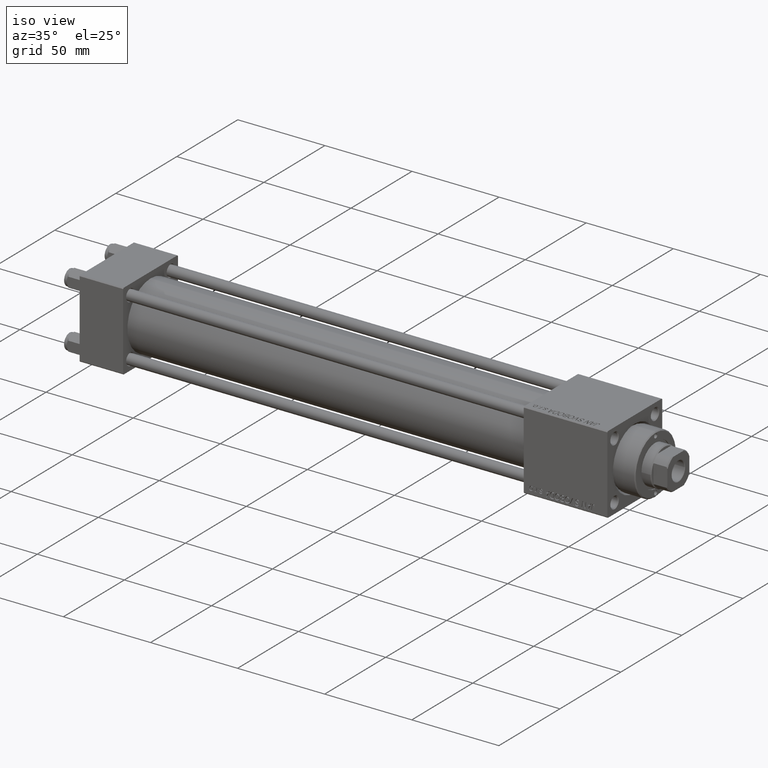
[diagram: clean part render]
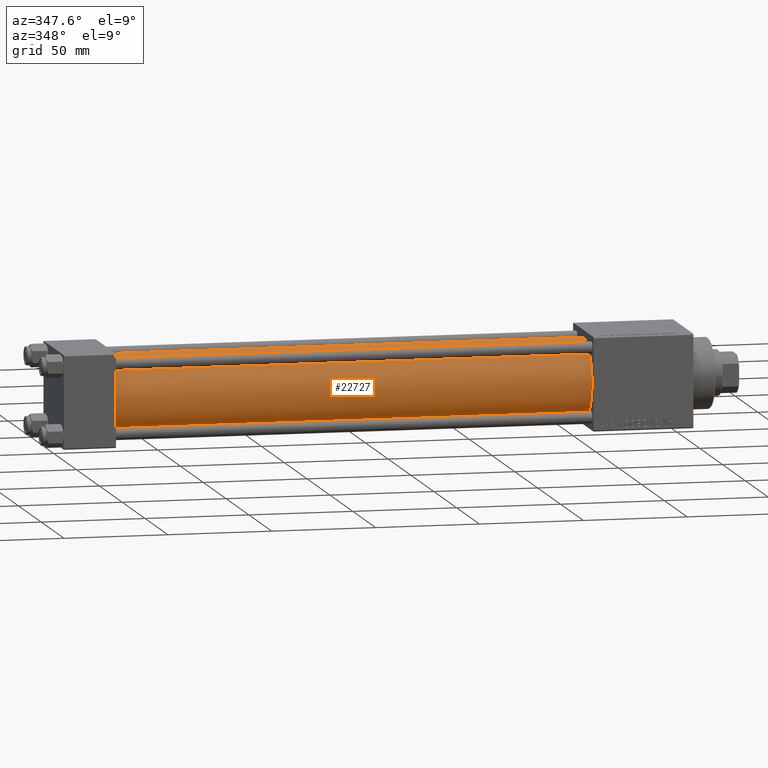
[diagram: tour spotlight — one face highlighted and labeled with its STEP entity id]
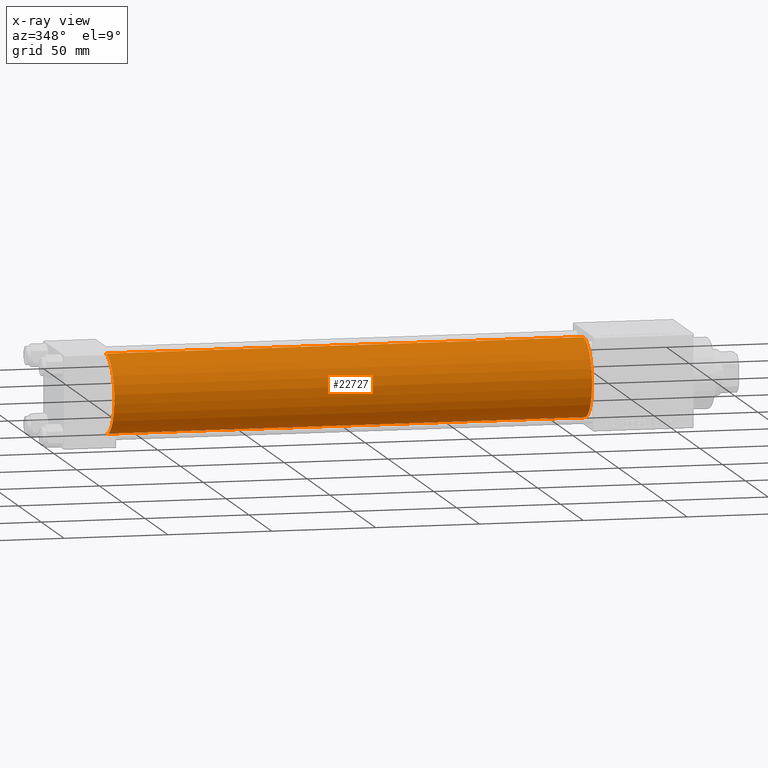
[diagram: x-ray of the same camera — body ghosted, this tour face saturated]
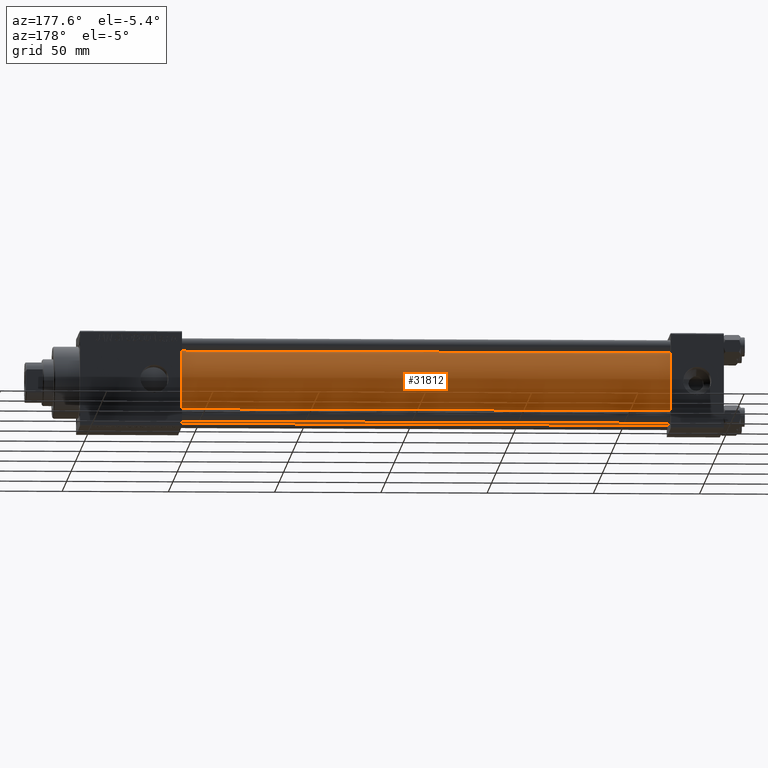
[diagram: tour spotlight — one face highlighted and labeled with its STEP entity id]
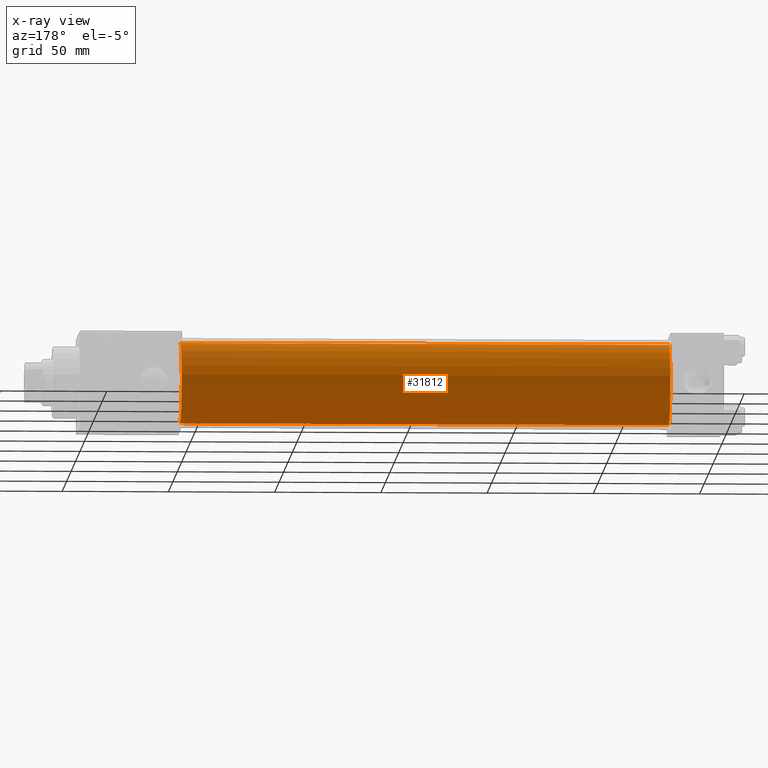
[diagram: x-ray of the same camera — body ghosted, this tour face saturated]
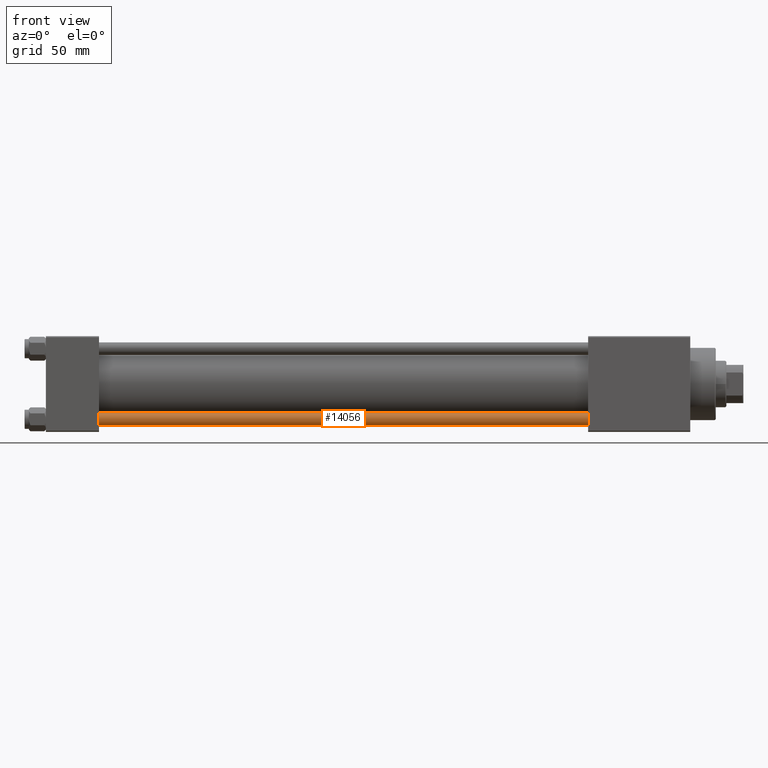
[diagram: tour spotlight — one face highlighted and labeled with its STEP entity id]
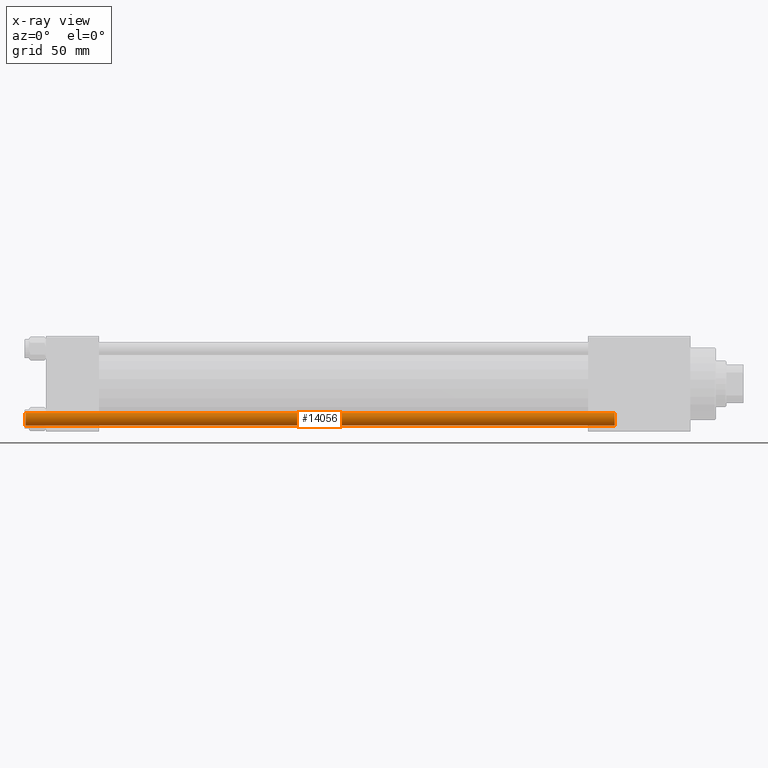
[diagram: x-ray of the same camera — body ghosted, this tour face saturated]
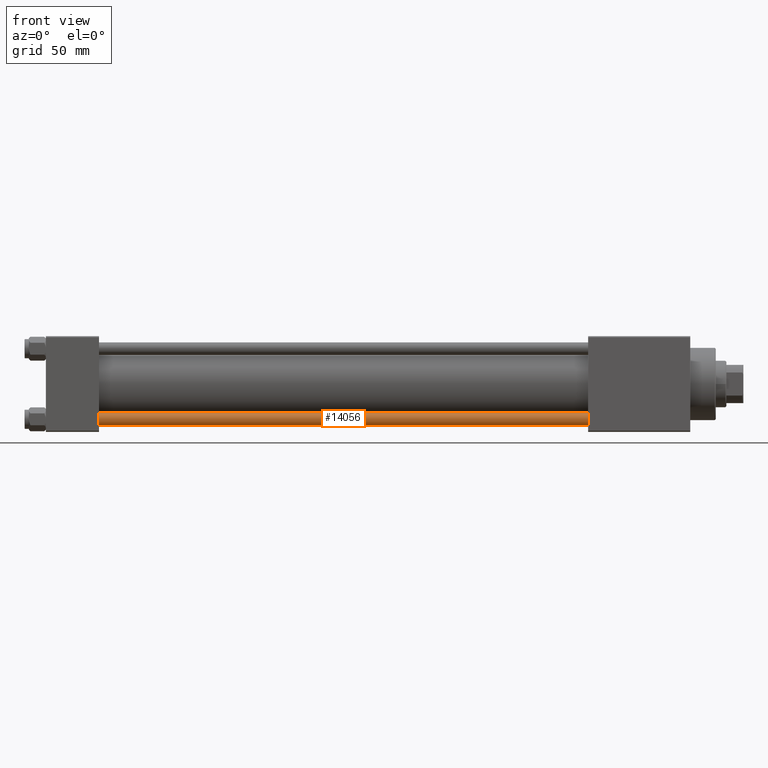
[diagram: tour spotlight — one face highlighted and labeled with its STEP entity id]
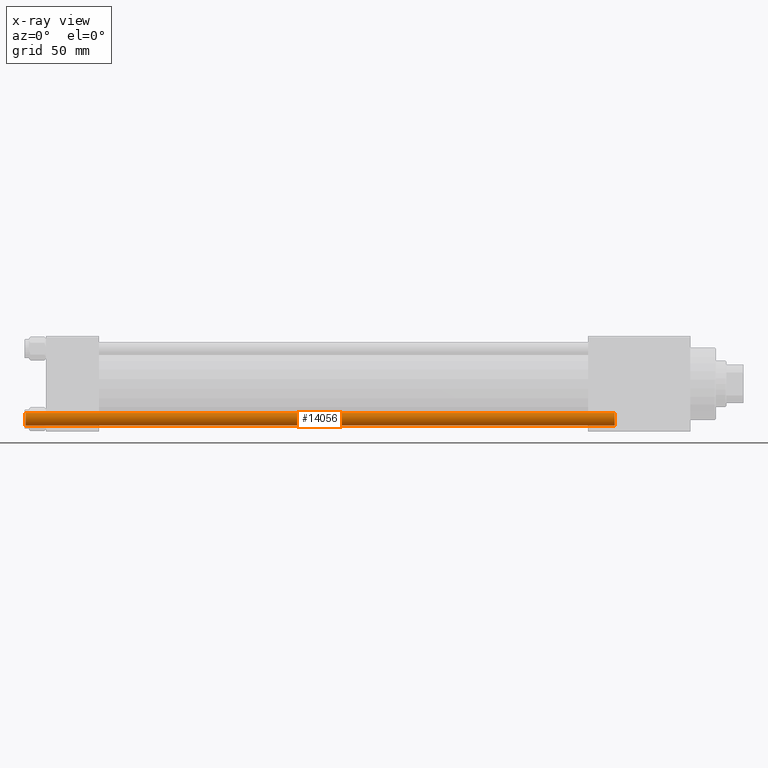
[diagram: x-ray of the same camera — body ghosted, this tour face saturated]
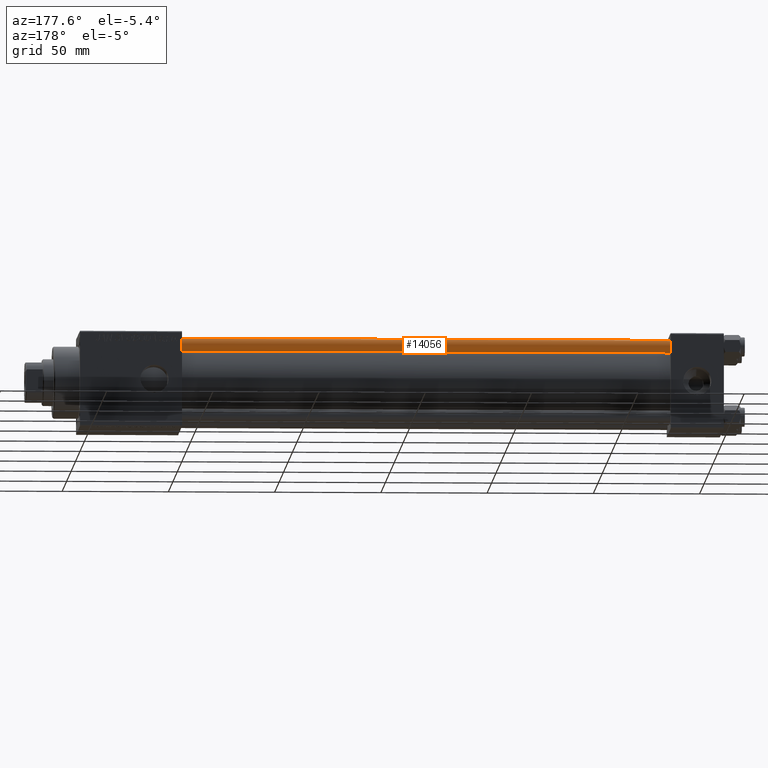
[diagram: tour spotlight — one face highlighted and labeled with its STEP entity id]
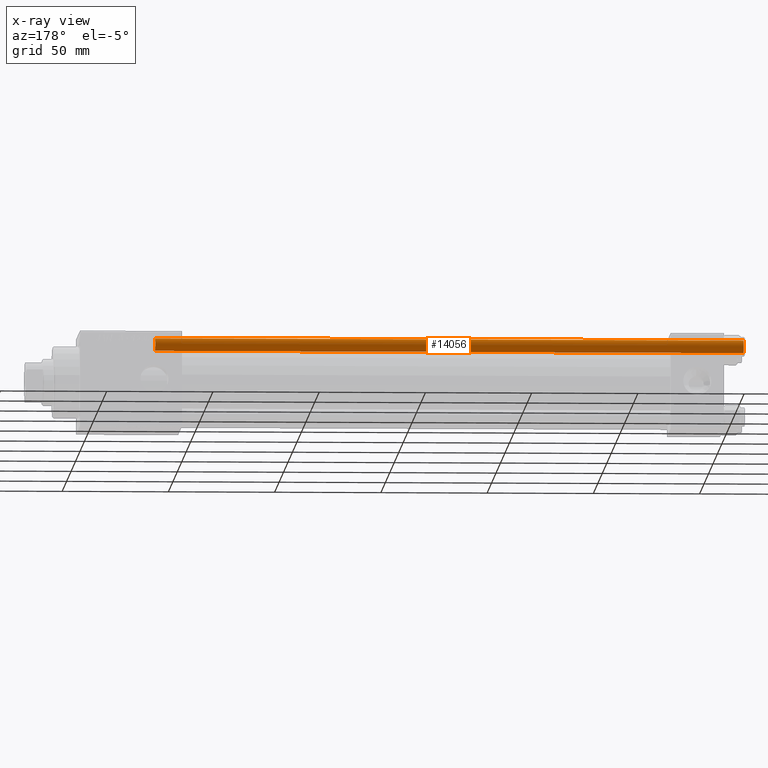
[diagram: x-ray of the same camera — body ghosted, this tour face saturated]
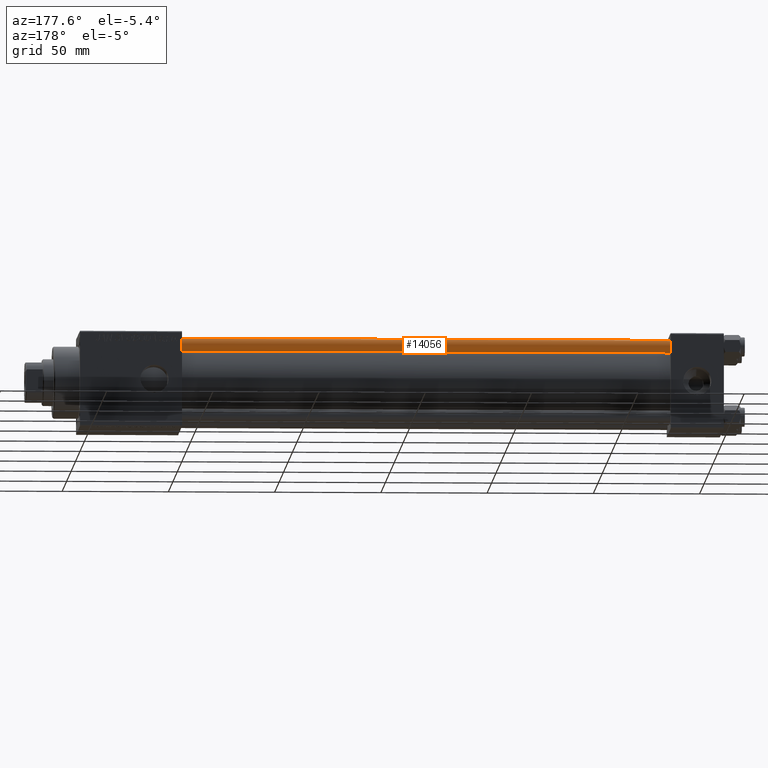
[diagram: tour spotlight — one face highlighted and labeled with its STEP entity id]
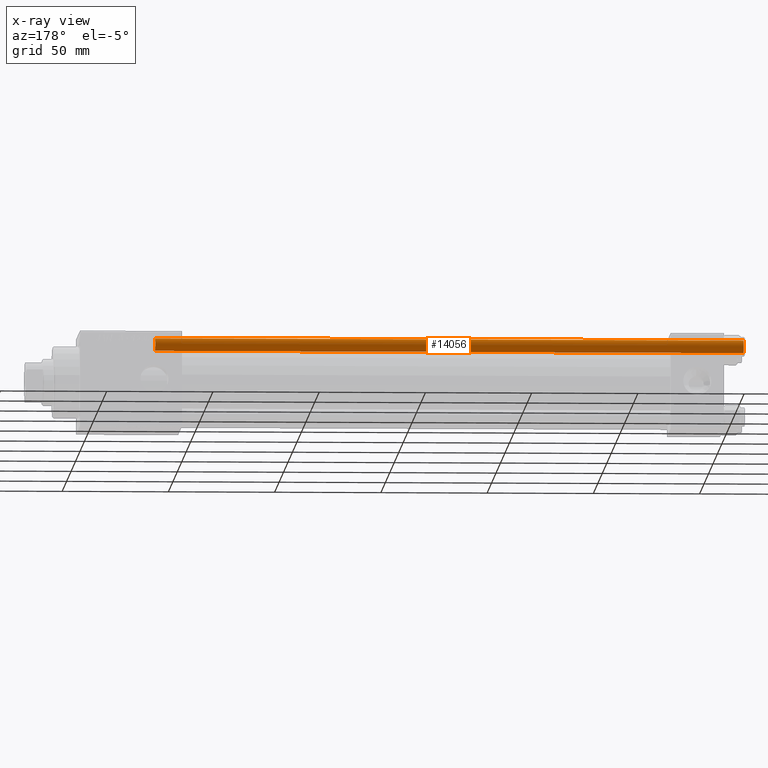
[diagram: x-ray of the same camera — body ghosted, this tour face saturated]
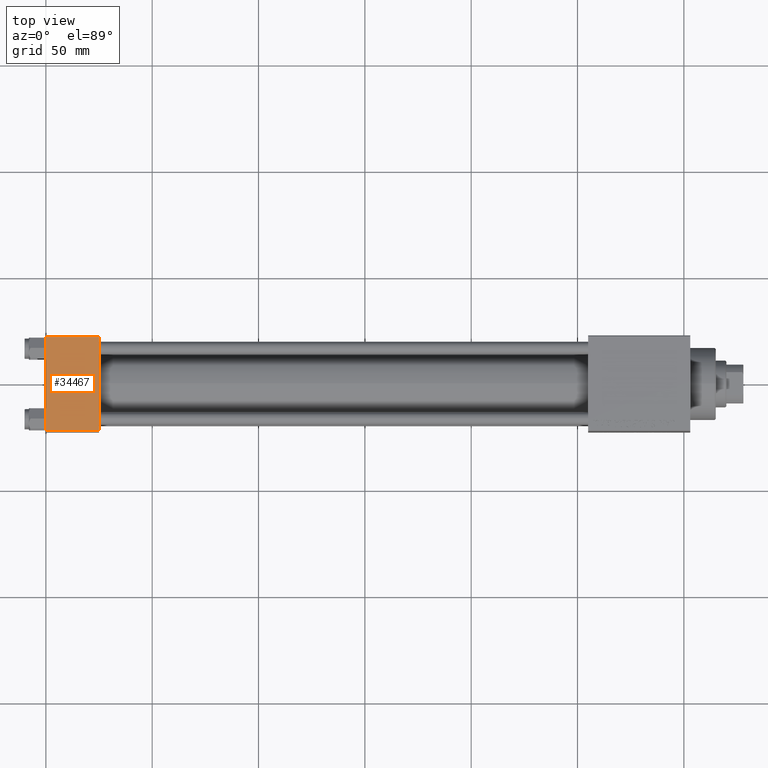
[diagram: tour spotlight — one face highlighted and labeled with its STEP entity id]
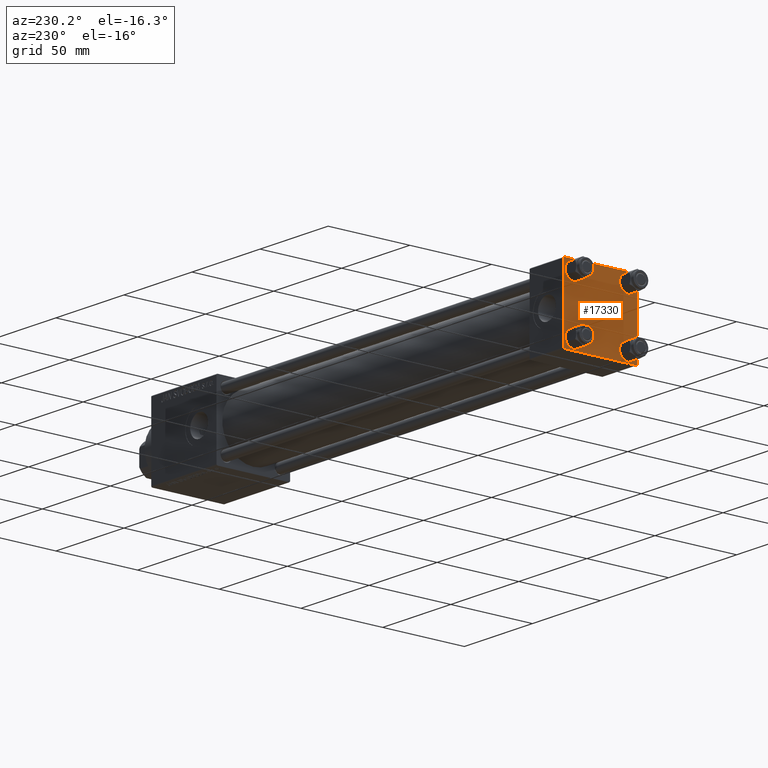
[diagram: tour spotlight — one face highlighted and labeled with its STEP entity id]
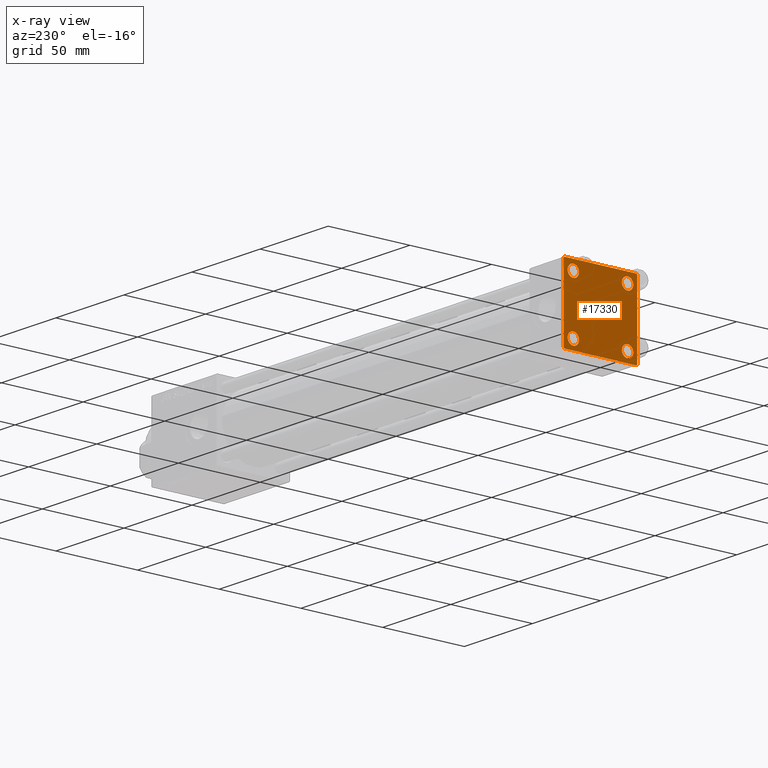
[diagram: x-ray of the same camera — body ghosted, this tour face saturated]
A machine part: a face-by-face anatomy tour. The part has 1154 B-rep faces; the first image is the clean iso view, then the 8 largest visible faces are spotlighted one at a time (largest first), each with its STEP entity span.

Face 1 — auxiliary view, entity #22727. An x-ray twin of the same camera follows (body ghosted, this face saturated) — the face is partly hidden behind the body. In plain terms, the highlighted cylindrical surface (partial cylindrical patch) has radius 19 mm, axis along (-1, -0, -0).
Definition (entity closure, byte-faithful):
#349 = CARTESIAN_POINT ( 'NONE',  ( 24.99999999999999289, -2.752562955852396712E-16, -19.00000000000000000 ) ) ;
#665 = CARTESIAN_POINT ( 'NONE',  ( 255.0000000000000000, -2.752562955852396712E-16, -19.00000000000000000 ) ) ;
#1818 = VERTEX_POINT ( 'NONE', #38699 ) ;
#5776 = CARTESIAN_POINT ( 'NONE',  ( 24.99999999999999289, -2.602085213965210642E-15, 19.00000000000000000 ) ) ;
#5983 = EDGE_CURVE ( 'NONE', #38402, #21989, #35597, .T. ) ;
#7943 = DIRECTION ( 'NONE',  ( 0.000000000000000000, 0.000000000000000000, -1.000000000000000000 ) ) ;
#9694 = DIRECTION ( 'NONE',  ( 1.000000000000000000, -0.000000000000000000, 0.000000000000000000 ) ) ;
#12506 = LINE ( 'NONE', #35947, #48695 ) ;
#13637 = AXIS2_PLACEMENT_3D ( 'NONE', #41027, #9694, #48650 ) ;
#15604 = EDGE_LOOP ( 'NONE', ( #18954, #30454, #49440, #44345 ) ) ;
#18343 = EDGE_CURVE ( 'NONE', #1818, #38402, #24346, .T. ) ;
#18954 = ORIENTED_EDGE ( 'NONE', *, *, #22371, .F. ) ;
#20275 = CARTESIAN_POINT ( 'NONE',  ( 255.0000000000000000, -2.602085213965210642E-15, 19.00000000000000000 ) ) ;
#21604 = DIRECTION ( 'NONE',  ( 0.000000000000000000, 0.000000000000000000, 1.000000000000000000 ) ) ;
#21854 = DIRECTION ( 'NONE',  ( -1.000000000000000000, -0.000000000000000000, -0.000000000000000000 ) ) ;
#21989 = VERTEX_POINT ( 'NONE', #349 ) ;
#22371 = EDGE_CURVE ( 'NONE', #39968, #21989, #12506, .T. ) ;
#22727 = ADVANCED_FACE ( 'NONE', ( #32830 ), #45268, .T. ) ;
#24346 = LINE ( 'NONE', #20275, #27774 ) ;
#27774 = VECTOR ( 'NONE', #35068, 1000.000000000000000 ) ;
#30454 = ORIENTED_EDGE ( 'NONE', *, *, #36781, .F. ) ;
#31650 = DIRECTION ( 'NONE',  ( 1.000000000000000000, 0.000000000000000000, 0.000000000000000000 ) ) ;
#32634 = DIRECTION ( 'NONE',  ( -1.000000000000000000, -0.000000000000000000, -0.000000000000000000 ) ) ;
#32830 = FACE_OUTER_BOUND ( 'NONE', #15604, .T. ) ;
#35068 = DIRECTION ( 'NONE',  ( -1.000000000000000000, -0.000000000000000000, -0.000000000000000000 ) ) ;
#35597 = CIRCLE ( 'NONE', #13637, 19.00000000000000000 ) ;
#35947 = CARTESIAN_POINT ( 'NONE',  ( 255.0000000000000000, -2.752562955852396712E-16, -19.00000000000000000 ) ) ;
#36024 = CIRCLE ( 'NONE', #46587, 19.00000000000000000 ) ;
#36781 = EDGE_CURVE ( 'NONE', #1818, #39968, #36024, .T. ) ;
#38402 = VERTEX_POINT ( 'NONE', #5776 ) ;
#38699 = CARTESIAN_POINT ( 'NONE',  ( 255.0000000000000000, -2.602085213965210642E-15, 19.00000000000000000 ) ) ;
#39760 = AXIS2_PLACEMENT_3D ( 'NONE', #48328, #21854, #21604 ) ;
#39968 = VERTEX_POINT ( 'NONE', #665 ) ;
#41027 = CARTESIAN_POINT ( 'NONE',  ( 24.99999999999999289, -2.602085213965210642E-15, 0.000000000000000000 ) ) ;
#41406 = CARTESIAN_POINT ( 'NONE',  ( 255.0000000000000000, -2.602085213965210642E-15, 0.000000000000000000 ) ) ;
#44345 = ORIENTED_EDGE ( 'NONE', *, *, #5983, .T. ) ;
#45268 = CYLINDRICAL_SURFACE ( 'NONE', #39760, 19.00000000000000000 ) ;
#46587 = AXIS2_PLACEMENT_3D ( 'NONE', #41406, #31650, #7943 ) ;
#48328 = CARTESIAN_POINT ( 'NONE',  ( 255.0000000000000000, -2.602085213965210642E-15, 0.000000000000000000 ) ) ;
#48650 = DIRECTION ( 'NONE',  ( 0.000000000000000000, 0.000000000000000000, 1.000000000000000000 ) ) ;
#48695 = VECTOR ( 'NONE', #32634, 1000.000000000000000 ) ;
#49440 = ORIENTED_EDGE ( 'NONE', *, *, #18343, .T. ) ;

Face 2 — auxiliary view, entity #31812. An x-ray twin of the same camera follows (body ghosted, this face saturated) — the face is partly hidden behind the body. In plain terms, the highlighted cylindrical surface (partial cylindrical patch) has radius 19 mm, axis along (-1, -0, -0).
Definition (entity closure, byte-faithful):
#349 = CARTESIAN_POINT ( 'NONE',  ( 24.99999999999999289, -2.752562955852396712E-16, -19.00000000000000000 ) ) ;
#665 = CARTESIAN_POINT ( 'NONE',  ( 255.0000000000000000, -2.752562955852396712E-16, -19.00000000000000000 ) ) ;
#1818 = VERTEX_POINT ( 'NONE', #38699 ) ;
#1847 = AXIS2_PLACEMENT_3D ( 'NONE', #44488, #36353, #32537 ) ;
#5754 = DIRECTION ( 'NONE',  ( -1.000000000000000000, -0.000000000000000000, -0.000000000000000000 ) ) ;
#5776 = CARTESIAN_POINT ( 'NONE',  ( 24.99999999999999289, -2.602085213965210642E-15, 19.00000000000000000 ) ) ;
#7682 = ORIENTED_EDGE ( 'NONE', *, *, #33455, .F. ) ;
#10512 = DIRECTION ( 'NONE',  ( 1.000000000000000000, -0.000000000000000000, 0.000000000000000000 ) ) ;
#12304 = CIRCLE ( 'NONE', #1847, 19.00000000000000000 ) ;
#12506 = LINE ( 'NONE', #35947, #48695 ) ;
#15353 = ORIENTED_EDGE ( 'NONE', *, *, #32255, .T. ) ;
#17226 = FACE_OUTER_BOUND ( 'NONE', #42284, .T. ) ;
#18108 = AXIS2_PLACEMENT_3D ( 'NONE', #26077, #10512, #45904 ) ;
#18343 = EDGE_CURVE ( 'NONE', #1818, #38402, #24346, .T. ) ;
#20275 = CARTESIAN_POINT ( 'NONE',  ( 255.0000000000000000, -2.602085213965210642E-15, 19.00000000000000000 ) ) ;
#21556 = CARTESIAN_POINT ( 'NONE',  ( 255.0000000000000000, -2.602085213965210642E-15, 0.000000000000000000 ) ) ;
#21989 = VERTEX_POINT ( 'NONE', #349 ) ;
#22371 = EDGE_CURVE ( 'NONE', #39968, #21989, #12506, .T. ) ;
#22993 = ORIENTED_EDGE ( 'NONE', *, *, #22371, .T. ) ;
#24346 = LINE ( 'NONE', #20275, #27774 ) ;
#26077 = CARTESIAN_POINT ( 'NONE',  ( 24.99999999999999289, -2.602085213965210642E-15, 0.000000000000000000 ) ) ;
#27774 = VECTOR ( 'NONE', #35068, 1000.000000000000000 ) ;
#31812 = ADVANCED_FACE ( 'NONE', ( #17226 ), #48277, .T. ) ;
#32255 = EDGE_CURVE ( 'NONE', #21989, #38402, #40058, .T. ) ;
#32537 = DIRECTION ( 'NONE',  ( 0.000000000000000000, 0.000000000000000000, -1.000000000000000000 ) ) ;
#32634 = DIRECTION ( 'NONE',  ( -1.000000000000000000, -0.000000000000000000, -0.000000000000000000 ) ) ;
#33455 = EDGE_CURVE ( 'NONE', #39968, #1818, #12304, .T. ) ;
#35068 = DIRECTION ( 'NONE',  ( -1.000000000000000000, -0.000000000000000000, -0.000000000000000000 ) ) ;
#35947 = CARTESIAN_POINT ( 'NONE',  ( 255.0000000000000000, -2.752562955852396712E-16, -19.00000000000000000 ) ) ;
#36353 = DIRECTION ( 'NONE',  ( 1.000000000000000000, 0.000000000000000000, 0.000000000000000000 ) ) ;
#38402 = VERTEX_POINT ( 'NONE', #5776 ) ;
#38699 = CARTESIAN_POINT ( 'NONE',  ( 255.0000000000000000, -2.602085213965210642E-15, 19.00000000000000000 ) ) ;
#39968 = VERTEX_POINT ( 'NONE', #665 ) ;
#40058 = CIRCLE ( 'NONE', #18108, 19.00000000000000000 ) ;
#42284 = EDGE_LOOP ( 'NONE', ( #7682, #22993, #15353, #47053 ) ) ;
#44124 = AXIS2_PLACEMENT_3D ( 'NONE', #21556, #5754, #48530 ) ;
#44488 = CARTESIAN_POINT ( 'NONE',  ( 255.0000000000000000, -2.602085213965210642E-15, 0.000000000000000000 ) ) ;
#45904 = DIRECTION ( 'NONE',  ( 0.000000000000000000, 0.000000000000000000, 1.000000000000000000 ) ) ;
#47053 = ORIENTED_EDGE ( 'NONE', *, *, #18343, .F. ) ;
#48277 = CYLINDRICAL_SURFACE ( 'NONE', #44124, 19.00000000000000000 ) ;
#48530 = DIRECTION ( 'NONE',  ( 0.000000000000000000, 0.000000000000000000, 1.000000000000000000 ) ) ;
#48695 = VECTOR ( 'NONE', #32634, 1000.000000000000000 ) ;

Face 3 — front view, entity #14056. An x-ray twin of the same camera follows (body ghosted, this face saturated) — the face is partly hidden behind the body. In plain terms, the highlighted cylindrical surface (edge-blend (fillet) strip) has radius 3 mm, axis along (1, 0, -0).
Definition (entity closure, byte-faithful):
#1478 = VERTEX_POINT ( 'NONE', #22034 ) ;
#3337 = AXIS2_PLACEMENT_3D ( 'NONE', #11235, #26798, #22977 ) ;
#3349 = FACE_OUTER_BOUND ( 'NONE', #3798, .T. ) ;
#3521 = CARTESIAN_POINT ( 'NONE',  ( 3.000000000000000444, 3.673940397442060361E-16, 277.5000000000000568 ) ) ;
#3798 = EDGE_LOOP ( 'NONE', ( #47733, #9255, #36329, #42404 ) ) ;
#9255 = ORIENTED_EDGE ( 'NONE', *, *, #37506, .T. ) ;
#10516 = DIRECTION ( 'NONE',  ( 1.000000000000000000, 0.000000000000000000, 0.000000000000000000 ) ) ;
#10584 = LINE ( 'NONE', #34781, #10813 ) ;
#10813 = VECTOR ( 'NONE', #46476, 1000.000000000000000 ) ;
#11235 = CARTESIAN_POINT ( 'NONE',  ( 0.000000000000000000, 0.000000000000000000, 278.0000000000000000 ) ) ;
#12219 = CARTESIAN_POINT ( 'NONE',  ( 0.000000000000000000, 0.000000000000000000, 277.5000000000000568 ) ) ;
#12700 = AXIS2_PLACEMENT_3D ( 'NONE', #12219, #43797, #35919 ) ;
#13636 = CARTESIAN_POINT ( 'NONE',  ( -3.000000000000000444, 0.000000000000000000, 277.5000000000000568 ) ) ;
#14056 = ADVANCED_FACE ( 'NONE', ( #3349 ), #46121, .T. ) ;
#16726 = LINE ( 'NONE', #28448, #35915 ) ;
#17323 = VERTEX_POINT ( 'NONE', #13636 ) ;
#22034 = CARTESIAN_POINT ( 'NONE',  ( 3.000000000000000444, 3.673940397442060361E-16, 0.5000000000000559552 ) ) ;
#22977 = DIRECTION ( 'NONE',  ( -1.000000000000000000, 0.000000000000000000, 0.000000000000000000 ) ) ;
#23293 = CIRCLE ( 'NONE', #12700, 3.000000000000000444 ) ;
#26798 = DIRECTION ( 'NONE',  ( -0.000000000000000000, -0.000000000000000000, -1.000000000000000000 ) ) ;
#28448 = CARTESIAN_POINT ( 'NONE',  ( -3.000000000000000444, 0.000000000000000000, 278.0000000000000000 ) ) ;
#32924 = EDGE_CURVE ( 'NONE', #17323, #43598, #16726, .T. ) ;
#33044 = CIRCLE ( 'NONE', #43602, 3.000000000000000444 ) ;
#34781 = CARTESIAN_POINT ( 'NONE',  ( 3.000000000000000444, 3.673940397442060361E-16, 278.0000000000000000 ) ) ;
#34891 = CARTESIAN_POINT ( 'NONE',  ( -3.000000000000000444, 0.000000000000000000, 0.5000000000000559552 ) ) ;
#35915 = VECTOR ( 'NONE', #48040, 1000.000000000000000 ) ;
#35919 = DIRECTION ( 'NONE',  ( 1.000000000000000000, 0.000000000000000000, 0.000000000000000000 ) ) ;
#36329 = ORIENTED_EDGE ( 'NONE', *, *, #49544, .T. ) ;
#37041 = CARTESIAN_POINT ( 'NONE',  ( 0.000000000000000000, 0.000000000000000000, 0.5000000000000559552 ) ) ;
#37506 = EDGE_CURVE ( 'NONE', #44739, #1478, #10584, .T. ) ;
#42404 = ORIENTED_EDGE ( 'NONE', *, *, #32924, .F. ) ;
#43598 = VERTEX_POINT ( 'NONE', #34891 ) ;
#43602 = AXIS2_PLACEMENT_3D ( 'NONE', #37041, #49470, #10516 ) ;
#43797 = DIRECTION ( 'NONE',  ( 0.000000000000000000, 0.000000000000000000, -1.000000000000000000 ) ) ;
#44739 = VERTEX_POINT ( 'NONE', #3521 ) ;
#45387 = EDGE_CURVE ( 'NONE', #17323, #44739, #23293, .T. ) ;
#46121 = CYLINDRICAL_SURFACE ( 'NONE', #3337, 3.000000000000000444 ) ;
#46476 = DIRECTION ( 'NONE',  ( -0.000000000000000000, -0.000000000000000000, -1.000000000000000000 ) ) ;
#47733 = ORIENTED_EDGE ( 'NONE', *, *, #45387, .T. ) ;
#48040 = DIRECTION ( 'NONE',  ( -0.000000000000000000, -0.000000000000000000, -1.000000000000000000 ) ) ;
#49470 = DIRECTION ( 'NONE',  ( -0.000000000000000000, -0.000000000000000000, 1.000000000000000000 ) ) ;
#49544 = EDGE_CURVE ( 'NONE', #1478, #43598, #33044, .T. ) ;

Face 4 — front view, entity #14056. An x-ray twin of the same camera follows (body ghosted, this face saturated) — the face is partly hidden behind the body. In plain terms, the highlighted cylindrical surface (edge-blend (fillet) strip) has radius 3 mm, axis along (-1, -0, -0).
Definition (entity closure, byte-faithful):
#1478 = VERTEX_POINT ( 'NONE', #22034 ) ;
#3337 = AXIS2_PLACEMENT_3D ( 'NONE', #11235, #26798, #22977 ) ;
#3349 = FACE_OUTER_BOUND ( 'NONE', #3798, .T. ) ;
#3521 = CARTESIAN_POINT ( 'NONE',  ( 3.000000000000000444, 3.673940397442060361E-16, 277.5000000000000568 ) ) ;
#3798 = EDGE_LOOP ( 'NONE', ( #47733, #9255, #36329, #42404 ) ) ;
#9255 = ORIENTED_EDGE ( 'NONE', *, *, #37506, .T. ) ;
#10516 = DIRECTION ( 'NONE',  ( 1.000000000000000000, 0.000000000000000000, 0.000000000000000000 ) ) ;
#10584 = LINE ( 'NONE', #34781, #10813 ) ;
#10813 = VECTOR ( 'NONE', #46476, 1000.000000000000000 ) ;
#11235 = CARTESIAN_POINT ( 'NONE',  ( 0.000000000000000000, 0.000000000000000000, 278.0000000000000000 ) ) ;
#12219 = CARTESIAN_POINT ( 'NONE',  ( 0.000000000000000000, 0.000000000000000000, 277.5000000000000568 ) ) ;
#12700 = AXIS2_PLACEMENT_3D ( 'NONE', #12219, #43797, #35919 ) ;
#13636 = CARTESIAN_POINT ( 'NONE',  ( -3.000000000000000444, 0.000000000000000000, 277.5000000000000568 ) ) ;
#14056 = ADVANCED_FACE ( 'NONE', ( #3349 ), #46121, .T. ) ;
#16726 = LINE ( 'NONE', #28448, #35915 ) ;
#17323 = VERTEX_POINT ( 'NONE', #13636 ) ;
#22034 = CARTESIAN_POINT ( 'NONE',  ( 3.000000000000000444, 3.673940397442060361E-16, 0.5000000000000559552 ) ) ;
#22977 = DIRECTION ( 'NONE',  ( -1.000000000000000000, 0.000000000000000000, 0.000000000000000000 ) ) ;
#23293 = CIRCLE ( 'NONE', #12700, 3.000000000000000444 ) ;
#26798 = DIRECTION ( 'NONE',  ( -0.000000000000000000, -0.000000000000000000, -1.000000000000000000 ) ) ;
#28448 = CARTESIAN_POINT ( 'NONE',  ( -3.000000000000000444, 0.000000000000000000, 278.0000000000000000 ) ) ;
#32924 = EDGE_CURVE ( 'NONE', #17323, #43598, #16726, .T. ) ;
#33044 = CIRCLE ( 'NONE', #43602, 3.000000000000000444 ) ;
#34781 = CARTESIAN_POINT ( 'NONE',  ( 3.000000000000000444, 3.673940397442060361E-16, 278.0000000000000000 ) ) ;
#34891 = CARTESIAN_POINT ( 'NONE',  ( -3.000000000000000444, 0.000000000000000000, 0.5000000000000559552 ) ) ;
#35915 = VECTOR ( 'NONE', #48040, 1000.000000000000000 ) ;
#35919 = DIRECTION ( 'NONE',  ( 1.000000000000000000, 0.000000000000000000, 0.000000000000000000 ) ) ;
#36329 = ORIENTED_EDGE ( 'NONE', *, *, #49544, .T. ) ;
#37041 = CARTESIAN_POINT ( 'NONE',  ( 0.000000000000000000, 0.000000000000000000, 0.5000000000000559552 ) ) ;
#37506 = EDGE_CURVE ( 'NONE', #44739, #1478, #10584, .T. ) ;
#42404 = ORIENTED_EDGE ( 'NONE', *, *, #32924, .F. ) ;
#43598 = VERTEX_POINT ( 'NONE', #34891 ) ;
#43602 = AXIS2_PLACEMENT_3D ( 'NONE', #37041, #49470, #10516 ) ;
#43797 = DIRECTION ( 'NONE',  ( 0.000000000000000000, 0.000000000000000000, -1.000000000000000000 ) ) ;
#44739 = VERTEX_POINT ( 'NONE', #3521 ) ;
#45387 = EDGE_CURVE ( 'NONE', #17323, #44739, #23293, .T. ) ;
#46121 = CYLINDRICAL_SURFACE ( 'NONE', #3337, 3.000000000000000444 ) ;
#46476 = DIRECTION ( 'NONE',  ( -0.000000000000000000, -0.000000000000000000, -1.000000000000000000 ) ) ;
#47733 = ORIENTED_EDGE ( 'NONE', *, *, #45387, .T. ) ;
#48040 = DIRECTION ( 'NONE',  ( -0.000000000000000000, -0.000000000000000000, -1.000000000000000000 ) ) ;
#49470 = DIRECTION ( 'NONE',  ( -0.000000000000000000, -0.000000000000000000, 1.000000000000000000 ) ) ;
#49544 = EDGE_CURVE ( 'NONE', #1478, #43598, #33044, .T. ) ;

Face 5 — auxiliary view, entity #14056. An x-ray twin of the same camera follows (body ghosted, this face saturated) — the face is partly hidden behind the body. In plain terms, the highlighted cylindrical surface (edge-blend (fillet) strip) has radius 3 mm, axis along (1, -0, 0).
Definition (entity closure, byte-faithful):
#1478 = VERTEX_POINT ( 'NONE', #22034 ) ;
#3337 = AXIS2_PLACEMENT_3D ( 'NONE', #11235, #26798, #22977 ) ;
#3349 = FACE_OUTER_BOUND ( 'NONE', #3798, .T. ) ;
#3521 = CARTESIAN_POINT ( 'NONE',  ( 3.000000000000000444, 3.673940397442060361E-16, 277.5000000000000568 ) ) ;
#3798 = EDGE_LOOP ( 'NONE', ( #47733, #9255, #36329, #42404 ) ) ;
#9255 = ORIENTED_EDGE ( 'NONE', *, *, #37506, .T. ) ;
#10516 = DIRECTION ( 'NONE',  ( 1.000000000000000000, 0.000000000000000000, 0.000000000000000000 ) ) ;
#10584 = LINE ( 'NONE', #34781, #10813 ) ;
#10813 = VECTOR ( 'NONE', #46476, 1000.000000000000000 ) ;
#11235 = CARTESIAN_POINT ( 'NONE',  ( 0.000000000000000000, 0.000000000000000000, 278.0000000000000000 ) ) ;
#12219 = CARTESIAN_POINT ( 'NONE',  ( 0.000000000000000000, 0.000000000000000000, 277.5000000000000568 ) ) ;
#12700 = AXIS2_PLACEMENT_3D ( 'NONE', #12219, #43797, #35919 ) ;
#13636 = CARTESIAN_POINT ( 'NONE',  ( -3.000000000000000444, 0.000000000000000000, 277.5000000000000568 ) ) ;
#14056 = ADVANCED_FACE ( 'NONE', ( #3349 ), #46121, .T. ) ;
#16726 = LINE ( 'NONE', #28448, #35915 ) ;
#17323 = VERTEX_POINT ( 'NONE', #13636 ) ;
#22034 = CARTESIAN_POINT ( 'NONE',  ( 3.000000000000000444, 3.673940397442060361E-16, 0.5000000000000559552 ) ) ;
#22977 = DIRECTION ( 'NONE',  ( -1.000000000000000000, 0.000000000000000000, 0.000000000000000000 ) ) ;
#23293 = CIRCLE ( 'NONE', #12700, 3.000000000000000444 ) ;
#26798 = DIRECTION ( 'NONE',  ( -0.000000000000000000, -0.000000000000000000, -1.000000000000000000 ) ) ;
#28448 = CARTESIAN_POINT ( 'NONE',  ( -3.000000000000000444, 0.000000000000000000, 278.0000000000000000 ) ) ;
#32924 = EDGE_CURVE ( 'NONE', #17323, #43598, #16726, .T. ) ;
#33044 = CIRCLE ( 'NONE', #43602, 3.000000000000000444 ) ;
#34781 = CARTESIAN_POINT ( 'NONE',  ( 3.000000000000000444, 3.673940397442060361E-16, 278.0000000000000000 ) ) ;
#34891 = CARTESIAN_POINT ( 'NONE',  ( -3.000000000000000444, 0.000000000000000000, 0.5000000000000559552 ) ) ;
#35915 = VECTOR ( 'NONE', #48040, 1000.000000000000000 ) ;
#35919 = DIRECTION ( 'NONE',  ( 1.000000000000000000, 0.000000000000000000, 0.000000000000000000 ) ) ;
#36329 = ORIENTED_EDGE ( 'NONE', *, *, #49544, .T. ) ;
#37041 = CARTESIAN_POINT ( 'NONE',  ( 0.000000000000000000, 0.000000000000000000, 0.5000000000000559552 ) ) ;
#37506 = EDGE_CURVE ( 'NONE', #44739, #1478, #10584, .T. ) ;
#42404 = ORIENTED_EDGE ( 'NONE', *, *, #32924, .F. ) ;
#43598 = VERTEX_POINT ( 'NONE', #34891 ) ;
#43602 = AXIS2_PLACEMENT_3D ( 'NONE', #37041, #49470, #10516 ) ;
#43797 = DIRECTION ( 'NONE',  ( 0.000000000000000000, 0.000000000000000000, -1.000000000000000000 ) ) ;
#44739 = VERTEX_POINT ( 'NONE', #3521 ) ;
#45387 = EDGE_CURVE ( 'NONE', #17323, #44739, #23293, .T. ) ;
#46121 = CYLINDRICAL_SURFACE ( 'NONE', #3337, 3.000000000000000444 ) ;
#46476 = DIRECTION ( 'NONE',  ( -0.000000000000000000, -0.000000000000000000, -1.000000000000000000 ) ) ;
#47733 = ORIENTED_EDGE ( 'NONE', *, *, #45387, .T. ) ;
#48040 = DIRECTION ( 'NONE',  ( -0.000000000000000000, -0.000000000000000000, -1.000000000000000000 ) ) ;
#49470 = DIRECTION ( 'NONE',  ( -0.000000000000000000, -0.000000000000000000, 1.000000000000000000 ) ) ;
#49544 = EDGE_CURVE ( 'NONE', #1478, #43598, #33044, .T. ) ;

Face 6 — auxiliary view, entity #14056. An x-ray twin of the same camera follows (body ghosted, this face saturated) — the face is partly hidden behind the body. In plain terms, the highlighted cylindrical surface (edge-blend (fillet) strip) has radius 3 mm, axis along (-1, 0, 0).
Definition (entity closure, byte-faithful):
#1478 = VERTEX_POINT ( 'NONE', #22034 ) ;
#3337 = AXIS2_PLACEMENT_3D ( 'NONE', #11235, #26798, #22977 ) ;
#3349 = FACE_OUTER_BOUND ( 'NONE', #3798, .T. ) ;
#3521 = CARTESIAN_POINT ( 'NONE',  ( 3.000000000000000444, 3.673940397442060361E-16, 277.5000000000000568 ) ) ;
#3798 = EDGE_LOOP ( 'NONE', ( #47733, #9255, #36329, #42404 ) ) ;
#9255 = ORIENTED_EDGE ( 'NONE', *, *, #37506, .T. ) ;
#10516 = DIRECTION ( 'NONE',  ( 1.000000000000000000, 0.000000000000000000, 0.000000000000000000 ) ) ;
#10584 = LINE ( 'NONE', #34781, #10813 ) ;
#10813 = VECTOR ( 'NONE', #46476, 1000.000000000000000 ) ;
#11235 = CARTESIAN_POINT ( 'NONE',  ( 0.000000000000000000, 0.000000000000000000, 278.0000000000000000 ) ) ;
#12219 = CARTESIAN_POINT ( 'NONE',  ( 0.000000000000000000, 0.000000000000000000, 277.5000000000000568 ) ) ;
#12700 = AXIS2_PLACEMENT_3D ( 'NONE', #12219, #43797, #35919 ) ;
#13636 = CARTESIAN_POINT ( 'NONE',  ( -3.000000000000000444, 0.000000000000000000, 277.5000000000000568 ) ) ;
#14056 = ADVANCED_FACE ( 'NONE', ( #3349 ), #46121, .T. ) ;
#16726 = LINE ( 'NONE', #28448, #35915 ) ;
#17323 = VERTEX_POINT ( 'NONE', #13636 ) ;
#22034 = CARTESIAN_POINT ( 'NONE',  ( 3.000000000000000444, 3.673940397442060361E-16, 0.5000000000000559552 ) ) ;
#22977 = DIRECTION ( 'NONE',  ( -1.000000000000000000, 0.000000000000000000, 0.000000000000000000 ) ) ;
#23293 = CIRCLE ( 'NONE', #12700, 3.000000000000000444 ) ;
#26798 = DIRECTION ( 'NONE',  ( -0.000000000000000000, -0.000000000000000000, -1.000000000000000000 ) ) ;
#28448 = CARTESIAN_POINT ( 'NONE',  ( -3.000000000000000444, 0.000000000000000000, 278.0000000000000000 ) ) ;
#32924 = EDGE_CURVE ( 'NONE', #17323, #43598, #16726, .T. ) ;
#33044 = CIRCLE ( 'NONE', #43602, 3.000000000000000444 ) ;
#34781 = CARTESIAN_POINT ( 'NONE',  ( 3.000000000000000444, 3.673940397442060361E-16, 278.0000000000000000 ) ) ;
#34891 = CARTESIAN_POINT ( 'NONE',  ( -3.000000000000000444, 0.000000000000000000, 0.5000000000000559552 ) ) ;
#35915 = VECTOR ( 'NONE', #48040, 1000.000000000000000 ) ;
#35919 = DIRECTION ( 'NONE',  ( 1.000000000000000000, 0.000000000000000000, 0.000000000000000000 ) ) ;
#36329 = ORIENTED_EDGE ( 'NONE', *, *, #49544, .T. ) ;
#37041 = CARTESIAN_POINT ( 'NONE',  ( 0.000000000000000000, 0.000000000000000000, 0.5000000000000559552 ) ) ;
#37506 = EDGE_CURVE ( 'NONE', #44739, #1478, #10584, .T. ) ;
#42404 = ORIENTED_EDGE ( 'NONE', *, *, #32924, .F. ) ;
#43598 = VERTEX_POINT ( 'NONE', #34891 ) ;
#43602 = AXIS2_PLACEMENT_3D ( 'NONE', #37041, #49470, #10516 ) ;
#43797 = DIRECTION ( 'NONE',  ( 0.000000000000000000, 0.000000000000000000, -1.000000000000000000 ) ) ;
#44739 = VERTEX_POINT ( 'NONE', #3521 ) ;
#45387 = EDGE_CURVE ( 'NONE', #17323, #44739, #23293, .T. ) ;
#46121 = CYLINDRICAL_SURFACE ( 'NONE', #3337, 3.000000000000000444 ) ;
#46476 = DIRECTION ( 'NONE',  ( -0.000000000000000000, -0.000000000000000000, -1.000000000000000000 ) ) ;
#47733 = ORIENTED_EDGE ( 'NONE', *, *, #45387, .T. ) ;
#48040 = DIRECTION ( 'NONE',  ( -0.000000000000000000, -0.000000000000000000, -1.000000000000000000 ) ) ;
#49470 = DIRECTION ( 'NONE',  ( -0.000000000000000000, -0.000000000000000000, 1.000000000000000000 ) ) ;
#49544 = EDGE_CURVE ( 'NONE', #1478, #43598, #33044, .T. ) ;

Face 7 — top view, entity #34467. In plain terms, the highlighted planar face has unit normal (0, 0, -1).
Definition (entity closure, byte-faithful):
#244 = EDGE_CURVE ( 'NONE', #2825, #8527, #17605, .T. ) ;
#971 = ORIENTED_EDGE ( 'NONE', *, *, #24410, .T. ) ;
#2825 = VERTEX_POINT ( 'NONE', #34892 ) ;
#4028 = VECTOR ( 'NONE', #35179, 1000.000000000000000 ) ;
#5325 = DIRECTION ( 'NONE',  ( 1.000000000000000000, 0.000000000000000000, 0.000000000000000000 ) ) ;
#7065 = VERTEX_POINT ( 'NONE', #8000 ) ;
#8000 = CARTESIAN_POINT ( 'NONE',  ( 25.00000000000000000, -21.99999999999997868, 22.50000000000000000 ) ) ;
#8527 = VERTEX_POINT ( 'NONE', #17624 ) ;
#9611 = VERTEX_POINT ( 'NONE', #48469 ) ;
#10156 = DIRECTION ( 'NONE',  ( 0.000000000000000000, -1.000000000000000000, -7.709882115452476934E-17 ) ) ;
#12411 = DIRECTION ( 'NONE',  ( 0.000000000000000000, 7.709882115452476934E-17, -1.000000000000000000 ) ) ;
#14239 = ORIENTED_EDGE ( 'NONE', *, *, #244, .T. ) ;
#16046 = CARTESIAN_POINT ( 'NONE',  ( 0.000000000000000000, 22.50000000000000000, 22.50000000000000355 ) ) ;
#16288 = LINE ( 'NONE', #20879, #24311 ) ;
#16840 = CARTESIAN_POINT ( 'NONE',  ( 0.000000000000000000, 21.99999999999999289, 22.50000000000000355 ) ) ;
#17605 = LINE ( 'NONE', #16840, #34735 ) ;
#17624 = CARTESIAN_POINT ( 'NONE',  ( 0.000000000000000000, 21.99999999999999289, 22.50000000000000355 ) ) ;
#19644 = LINE ( 'NONE', #16046, #4028 ) ;
#20747 = EDGE_LOOP ( 'NONE', ( #971, #34275, #41501, #14239 ) ) ;
#20879 = CARTESIAN_POINT ( 'NONE',  ( 25.00000000000000000, -21.99999999999999289, 22.50000000000000000 ) ) ;
#21756 = PLANE ( 'NONE',  #40823 ) ;
#23370 = EDGE_CURVE ( 'NONE', #9611, #7065, #16288, .T. ) ;
#23874 = CARTESIAN_POINT ( 'NONE',  ( 25.00000000000000000, 22.50000000000000000, 22.50000000000000355 ) ) ;
#24311 = VECTOR ( 'NONE', #5325, 1000.000000000000000 ) ;
#24410 = EDGE_CURVE ( 'NONE', #8527, #9611, #19644, .T. ) ;
#26831 = EDGE_CURVE ( 'NONE', #2825, #7065, #48612, .T. ) ;
#27703 = VECTOR ( 'NONE', #10156, 1000.000000000000000 ) ;
#28567 = DIRECTION ( 'NONE',  ( -1.000000000000000000, 0.000000000000000000, 0.000000000000000000 ) ) ;
#34275 = ORIENTED_EDGE ( 'NONE', *, *, #23370, .T. ) ;
#34467 = ADVANCED_FACE ( 'NONE', ( #48722 ), #21756, .F. ) ;
#34735 = VECTOR ( 'NONE', #28567, 1000.000000000000000 ) ;
#34892 = CARTESIAN_POINT ( 'NONE',  ( 25.00000000000000000, 21.99999999999999289, 22.50000000000000355 ) ) ;
#35179 = DIRECTION ( 'NONE',  ( 0.000000000000000000, -1.000000000000000000, -7.709882115452476934E-17 ) ) ;
#37927 = CARTESIAN_POINT ( 'NONE',  ( 25.00000000000000000, 22.50000000000000000, 22.50000000000000355 ) ) ;
#40823 = AXIS2_PLACEMENT_3D ( 'NONE', #23874, #12411, #43977 ) ;
#41501 = ORIENTED_EDGE ( 'NONE', *, *, #26831, .F. ) ;
#43977 = DIRECTION ( 'NONE',  ( 0.000000000000000000, 1.000000000000000000, 7.709882115452476934E-17 ) ) ;
#48469 = CARTESIAN_POINT ( 'NONE',  ( 0.000000000000000000, -21.99999999999997868, 22.50000000000000000 ) ) ;
#48612 = LINE ( 'NONE', #37927, #27703 ) ;
#48722 = FACE_OUTER_BOUND ( 'NONE', #20747, .T. ) ;

Face 8 — auxiliary view, entity #17330. An x-ray twin of the same camera follows (body ghosted, this face saturated) — the face is partly hidden behind the body. In plain terms, the highlighted planar face has unit normal (-1, 0, 0).
Definition (entity closure, byte-faithful):
#1688 = AXIS2_PLACEMENT_3D ( 'NONE', #9293, #16943, #25107 ) ;
#1796 = ORIENTED_EDGE ( 'NONE', *, *, #24410, .F. ) ;
#2168 = FACE_OUTER_BOUND ( 'NONE', #38326, .T. ) ;
#2683 = VERTEX_POINT ( 'NONE', #24990 ) ;
#2750 = LINE ( 'NONE', #33840, #31923 ) ;
#2862 = ORIENTED_EDGE ( 'NONE', *, *, #12339, .T. ) ;
#3061 = EDGE_CURVE ( 'NONE', #2683, #42901, #38826, .T. ) ;
#3705 = EDGE_LOOP ( 'NONE', ( #10468, #11545 ) ) ;
#4028 = VECTOR ( 'NONE', #35179, 1000.000000000000000 ) ;
#5171 = ORIENTED_EDGE ( 'NONE', *, *, #13688, .T. ) ;
#5228 = FACE_BOUND ( 'NONE', #33699, .T. ) ;
#5720 = EDGE_LOOP ( 'NONE', ( #19226, #2862 ) ) ;
#5739 = EDGE_CURVE ( 'NONE', #47504, #16065, #19352, .T. ) ;
#5990 = FACE_BOUND ( 'NONE', #5720, .T. ) ;
#6497 = EDGE_LOOP ( 'NONE', ( #23738, #5171 ) ) ;
#8452 = DIRECTION ( 'NONE',  ( 0.000000000000000000, 0.000000000000000000, 1.000000000000000000 ) ) ;
#8527 = VERTEX_POINT ( 'NONE', #17624 ) ;
#8744 = VERTEX_POINT ( 'NONE', #47861 ) ;
#8756 = VERTEX_POINT ( 'NONE', #43799 ) ;
#9293 = CARTESIAN_POINT ( 'NONE',  ( 0.000000000000000000, 0.000000000000000000, 0.000000000000000000 ) ) ;
#9611 = VERTEX_POINT ( 'NONE', #48469 ) ;
#10468 = ORIENTED_EDGE ( 'NONE', *, *, #26697, .T. ) ;
#11045 = DIRECTION ( 'NONE',  ( 1.000000000000000000, -0.000000000000000000, 0.000000000000000000 ) ) ;
#11545 = ORIENTED_EDGE ( 'NONE', *, *, #29588, .T. ) ;
#11770 = EDGE_CURVE ( 'NONE', #40960, #24240, #35016, .T. ) ;
#12339 = EDGE_CURVE ( 'NONE', #8744, #28502, #24428, .T. ) ;
#12586 = ORIENTED_EDGE ( 'NONE', *, *, #29213, .T. ) ;
#12985 = CARTESIAN_POINT ( 'NONE',  ( 0.000000000000000000, 16.59999999999999787, 16.60000000000000497 ) ) ;
#13401 = DIRECTION ( 'NONE',  ( 1.000000000000000000, -0.000000000000000000, 0.000000000000000000 ) ) ;
#13453 = LINE ( 'NONE', #32831, #26478 ) ;
#13670 = CARTESIAN_POINT ( 'NONE',  ( 0.000000000000000000, -16.59999999999999076, 16.60000000000000853 ) ) ;
#13682 = DIRECTION ( 'NONE',  ( -0.000000000000000000, 0.7071067811865525687, 0.7071067811865425767 ) ) ;
#13688 = EDGE_CURVE ( 'NONE', #16065, #47504, #27746, .T. ) ;
#13847 = AXIS2_PLACEMENT_3D ( 'NONE', #21197, #27834, #8452 ) ;
#14593 = CARTESIAN_POINT ( 'NONE',  ( 0.000000000000000000, 22.50000000000000000, -21.99999999999996803 ) ) ;
#15947 = CARTESIAN_POINT ( 'NONE',  ( 0.000000000000000000, -22.50000000000000000, -21.99999999999997158 ) ) ;
#16046 = CARTESIAN_POINT ( 'NONE',  ( 0.000000000000000000, 22.50000000000000000, 22.50000000000000355 ) ) ;
#16065 = VERTEX_POINT ( 'NONE', #49874 ) ;
#16451 = CARTESIAN_POINT ( 'NONE',  ( 0.000000000000000000, 22.50000000000000000, 21.99999999999999645 ) ) ;
#16678 = DIRECTION ( 'NONE',  ( 1.000000000000000000, -0.000000000000000000, 0.000000000000000000 ) ) ;
#16943 = DIRECTION ( 'NONE',  ( -1.000000000000000000, 0.000000000000000000, -0.000000000000000000 ) ) ;
#17051 = DIRECTION ( 'NONE',  ( 0.000000000000000000, 0.000000000000000000, 1.000000000000000000 ) ) ;
#17330 = ADVANCED_FACE ( 'NONE', ( #5990, #32499, #5228, #21032, #2168 ), #29181, .T. ) ;
#17531 = LINE ( 'NONE', #24167, #32100 ) ;
#17624 = CARTESIAN_POINT ( 'NONE',  ( 0.000000000000000000, 21.99999999999999289, 22.50000000000000355 ) ) ;
#18730 = CARTESIAN_POINT ( 'NONE',  ( 0.000000000000000000, -22.50000000000000000, 22.50000000000000000 ) ) ;
#18918 = VERTEX_POINT ( 'NONE', #36706 ) ;
#19226 = ORIENTED_EDGE ( 'NONE', *, *, #35391, .T. ) ;
#19352 = CIRCLE ( 'NONE', #25867, 3.499999999999996003 ) ;
#19480 = DIRECTION ( 'NONE',  ( 1.000000000000000000, -0.000000000000000000, 0.000000000000000000 ) ) ;
#19644 = LINE ( 'NONE', #16046, #4028 ) ;
#20342 = EDGE_CURVE ( 'NONE', #8527, #43044, #2750, .T. ) ;
#20375 = CARTESIAN_POINT ( 'NONE',  ( 0.000000000000000000, 22.50000000000000000, -22.49999999999999645 ) ) ;
#20396 = AXIS2_PLACEMENT_3D ( 'NONE', #34001, #11045, #22281 ) ;
#20771 = ORIENTED_EDGE ( 'NONE', *, *, #43655, .T. ) ;
#21032 = FACE_BOUND ( 'NONE', #3705, .T. ) ;
#21046 = DIRECTION ( 'NONE',  ( 0.000000000000000000, 0.000000000000000000, 1.000000000000000000 ) ) ;
#21197 = CARTESIAN_POINT ( 'NONE',  ( 0.000000000000000000, 16.59999999999999787, -16.60000000000000497 ) ) ;
#22121 = DIRECTION ( 'NONE',  ( 0.000000000000000000, 0.7071067811865474617, -0.7071067811865474617 ) ) ;
#22281 = DIRECTION ( 'NONE',  ( 0.000000000000000000, 0.000000000000000000, 1.000000000000000000 ) ) ;
#22807 = AXIS2_PLACEMENT_3D ( 'NONE', #12985, #36419, #17051 ) ;
#23426 = EDGE_CURVE ( 'NONE', #40216, #18918, #35414, .T. ) ;
#23738 = ORIENTED_EDGE ( 'NONE', *, *, #5739, .T. ) ;
#24041 = AXIS2_PLACEMENT_3D ( 'NONE', #42151, #19480, #35017 ) ;
#24167 = CARTESIAN_POINT ( 'NONE',  ( 0.000000000000000000, -22.25000000000014566, -22.24999999999984013 ) ) ;
#24240 = VERTEX_POINT ( 'NONE', #37235 ) ;
#24410 = EDGE_CURVE ( 'NONE', #8527, #9611, #19644, .T. ) ;
#24428 = CIRCLE ( 'NONE', #30953, 3.499999999999996003 ) ;
#24555 = ORIENTED_EDGE ( 'NONE', *, *, #20342, .T. ) ;
#24990 = CARTESIAN_POINT ( 'NONE',  ( 0.000000000000000000, -22.50000000000000000, 22.00000000000000000 ) ) ;
#25028 = ORIENTED_EDGE ( 'NONE', *, *, #30403, .T. ) ;
#25107 = DIRECTION ( 'NONE',  ( -0.000000000000000000, 0.000000000000000000, 1.000000000000000000 ) ) ;
#25867 = AXIS2_PLACEMENT_3D ( 'NONE', #36839, #13401, #21046 ) ;
#26050 = ORIENTED_EDGE ( 'NONE', *, *, #3061, .F. ) ;
#26478 = VECTOR ( 'NONE', #27996, 1000.000000000000000 ) ;
#26697 = EDGE_CURVE ( 'NONE', #31701, #8756, #32539, .T. ) ;
#27256 = CARTESIAN_POINT ( 'NONE',  ( 0.000000000000000000, -16.59999999999999076, -13.10000000000001030 ) ) ;
#27546 = ORIENTED_EDGE ( 'NONE', *, *, #41050, .T. ) ;
#27746 = CIRCLE ( 'NONE', #20396, 3.499999999999996003 ) ;
#27834 = DIRECTION ( 'NONE',  ( 1.000000000000000000, -0.000000000000000000, 0.000000000000000000 ) ) ;
#27996 = DIRECTION ( 'NONE',  ( 0.000000000000000000, 0.000000000000000000, -1.000000000000000000 ) ) ;
#28502 = VERTEX_POINT ( 'NONE', #43124 ) ;
#28575 = VECTOR ( 'NONE', #13682, 999.9999999999998863 ) ;
#29181 = PLANE ( 'NONE',  #1688 ) ;
#29213 = EDGE_CURVE ( 'NONE', #2683, #9611, #33566, .T. ) ;
#29448 = VECTOR ( 'NONE', #33515, 1000.000000000000000 ) ;
#29588 = EDGE_CURVE ( 'NONE', #8756, #31701, #38355, .T. ) ;
#30403 = EDGE_CURVE ( 'NONE', #32261, #40216, #41128, .T. ) ;
#30573 = CIRCLE ( 'NONE', #24041, 3.499999999999996003 ) ;
#30953 = AXIS2_PLACEMENT_3D ( 'NONE', #13670, #36863, #36602 ) ;
#31701 = VERTEX_POINT ( 'NONE', #43961 ) ;
#31923 = VECTOR ( 'NONE', #22121, 1000.000000000000114 ) ;
#32100 = VECTOR ( 'NONE', #47578, 1000.000000000000000 ) ;
#32261 = VERTEX_POINT ( 'NONE', #14593 ) ;
#32499 = FACE_BOUND ( 'NONE', #6497, .T. ) ;
#32539 = CIRCLE ( 'NONE', #22807, 3.499999999999996003 ) ;
#32831 = CARTESIAN_POINT ( 'NONE',  ( 0.000000000000000000, 22.50000000000000000, 22.50000000000000355 ) ) ;
#33515 = DIRECTION ( 'NONE',  ( -0.000000000000000000, -0.7071067811865426878, -0.7071067811865524577 ) ) ;
#33566 = LINE ( 'NONE', #49555, #28575 ) ;
#33699 = EDGE_LOOP ( 'NONE', ( #46682, #35692 ) ) ;
#33840 = CARTESIAN_POINT ( 'NONE',  ( 0.000000000000000000, 22.24999999999999645, 22.24999999999999645 ) ) ;
#34001 = CARTESIAN_POINT ( 'NONE',  ( 0.000000000000000000, -16.59999999999999076, -16.60000000000000853 ) ) ;
#34500 = DIRECTION ( 'NONE',  ( 1.000000000000000000, -0.000000000000000000, 0.000000000000000000 ) ) ;
#35016 = CIRCLE ( 'NONE', #13847, 3.499999999999996003 ) ;
#35017 = DIRECTION ( 'NONE',  ( 0.000000000000000000, 0.000000000000000000, 1.000000000000000000 ) ) ;
#35179 = DIRECTION ( 'NONE',  ( 0.000000000000000000, -1.000000000000000000, -7.709882115452476934E-17 ) ) ;
#35391 = EDGE_CURVE ( 'NONE', #28502, #8744, #48973, .T. ) ;
#35414 = LINE ( 'NONE', #20375, #38968 ) ;
#35692 = ORIENTED_EDGE ( 'NONE', *, *, #11770, .T. ) ;
#35914 = DIRECTION ( 'NONE',  ( 0.000000000000000000, -1.000000000000000000, -2.312964634635742957E-16 ) ) ;
#36419 = DIRECTION ( 'NONE',  ( 1.000000000000000000, -0.000000000000000000, 0.000000000000000000 ) ) ;
#36602 = DIRECTION ( 'NONE',  ( 0.000000000000000000, 0.000000000000000000, 1.000000000000000000 ) ) ;
#36706 = CARTESIAN_POINT ( 'NONE',  ( 0.000000000000000000, -21.99999999999997158, -22.50000000000000711 ) ) ;
#36839 = CARTESIAN_POINT ( 'NONE',  ( 0.000000000000000000, -16.59999999999999076, -16.60000000000000853 ) ) ;
#36863 = DIRECTION ( 'NONE',  ( 1.000000000000000000, -0.000000000000000000, 0.000000000000000000 ) ) ;
#37235 = CARTESIAN_POINT ( 'NONE',  ( 0.000000000000000000, 16.59999999999999787, -13.10000000000000675 ) ) ;
#38326 = EDGE_LOOP ( 'NONE', ( #20771, #25028, #50006, #27546, #26050, #12586, #1796, #24555 ) ) ;
#38355 = CIRCLE ( 'NONE', #39986, 3.499999999999996003 ) ;
#38808 = DIRECTION ( 'NONE',  ( 0.000000000000000000, 0.000000000000000000, 1.000000000000000000 ) ) ;
#38826 = LINE ( 'NONE', #18730, #50145 ) ;
#38968 = VECTOR ( 'NONE', #35914, 1000.000000000000000 ) ;
#39986 = AXIS2_PLACEMENT_3D ( 'NONE', #42876, #34500, #38808 ) ;
#40216 = VERTEX_POINT ( 'NONE', #49258 ) ;
#40960 = VERTEX_POINT ( 'NONE', #48082 ) ;
#41050 = EDGE_CURVE ( 'NONE', #18918, #42901, #17531, .T. ) ;
#41128 = LINE ( 'NONE', #45197, #29448 ) ;
#42151 = CARTESIAN_POINT ( 'NONE',  ( 0.000000000000000000, 16.59999999999999787, -16.60000000000000497 ) ) ;
#42876 = CARTESIAN_POINT ( 'NONE',  ( 0.000000000000000000, 16.59999999999999787, 16.60000000000000497 ) ) ;
#42901 = VERTEX_POINT ( 'NONE', #15947 ) ;
#43044 = VERTEX_POINT ( 'NONE', #16451 ) ;
#43124 = CARTESIAN_POINT ( 'NONE',  ( 0.000000000000000000, -16.59999999999999076, 20.10000000000000853 ) ) ;
#43282 = AXIS2_PLACEMENT_3D ( 'NONE', #46735, #16678, #43427 ) ;
#43427 = DIRECTION ( 'NONE',  ( 0.000000000000000000, 0.000000000000000000, 1.000000000000000000 ) ) ;
#43655 = EDGE_CURVE ( 'NONE', #43044, #32261, #13453, .T. ) ;
#43799 = CARTESIAN_POINT ( 'NONE',  ( 0.000000000000000000, 16.59999999999999787, 13.10000000000000675 ) ) ;
#43961 = CARTESIAN_POINT ( 'NONE',  ( 0.000000000000000000, 16.59999999999999787, 20.10000000000000142 ) ) ;
#44151 = EDGE_CURVE ( 'NONE', #24240, #40960, #30573, .T. ) ;
#45197 = CARTESIAN_POINT ( 'NONE',  ( 0.000000000000000000, 22.25000000000014566, -22.24999999999984013 ) ) ;
#46682 = ORIENTED_EDGE ( 'NONE', *, *, #44151, .T. ) ;
#46735 = CARTESIAN_POINT ( 'NONE',  ( 0.000000000000000000, -16.59999999999999076, 16.60000000000000853 ) ) ;
#47504 = VERTEX_POINT ( 'NONE', #27256 ) ;
#47578 = DIRECTION ( 'NONE',  ( 0.000000000000000000, -0.7071067811865426878, 0.7071067811865524577 ) ) ;
#47861 = CARTESIAN_POINT ( 'NONE',  ( 0.000000000000000000, -16.59999999999999076, 13.10000000000001030 ) ) ;
#48082 = CARTESIAN_POINT ( 'NONE',  ( 0.000000000000000000, 16.59999999999999787, -20.10000000000000142 ) ) ;
#48469 = CARTESIAN_POINT ( 'NONE',  ( 0.000000000000000000, -21.99999999999997868, 22.50000000000000000 ) ) ;
#48973 = CIRCLE ( 'NONE', #43282, 3.499999999999996003 ) ;
#49258 = CARTESIAN_POINT ( 'NONE',  ( 0.000000000000000000, 21.99999999999999289, -22.49999999999999645 ) ) ;
#49555 = CARTESIAN_POINT ( 'NONE',  ( -0.000000000000000000, -22.24999999999984013, 22.25000000000015277 ) ) ;
#49874 = CARTESIAN_POINT ( 'NONE',  ( 0.000000000000000000, -16.59999999999999076, -20.10000000000000497 ) ) ;
#50006 = ORIENTED_EDGE ( 'NONE', *, *, #23426, .T. ) ;
#50017 = DIRECTION ( 'NONE',  ( 0.000000000000000000, 0.000000000000000000, -1.000000000000000000 ) ) ;
#50145 = VECTOR ( 'NONE', #50017, 1000.000000000000000 ) ;